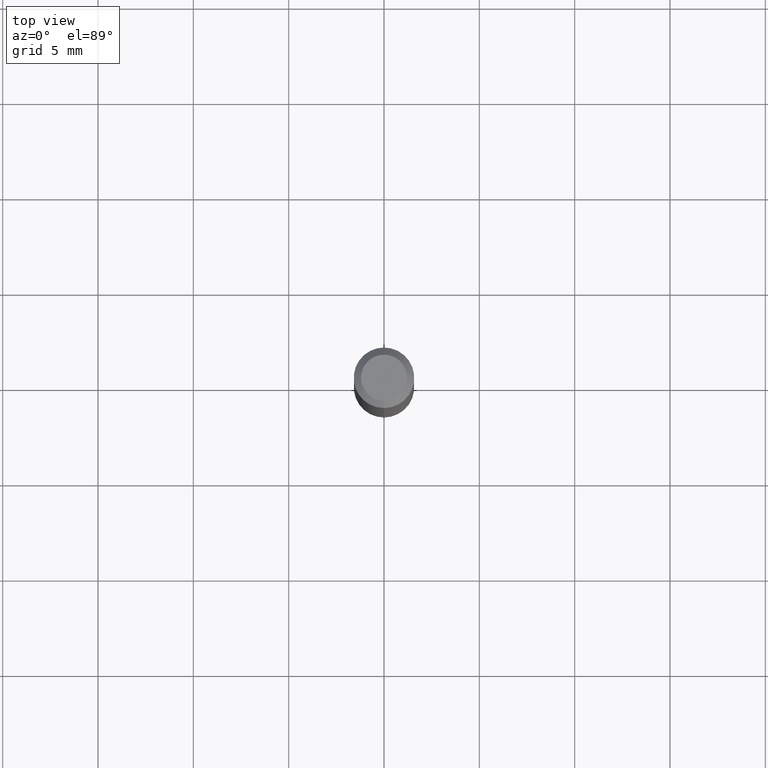
[diagram: clean part render]
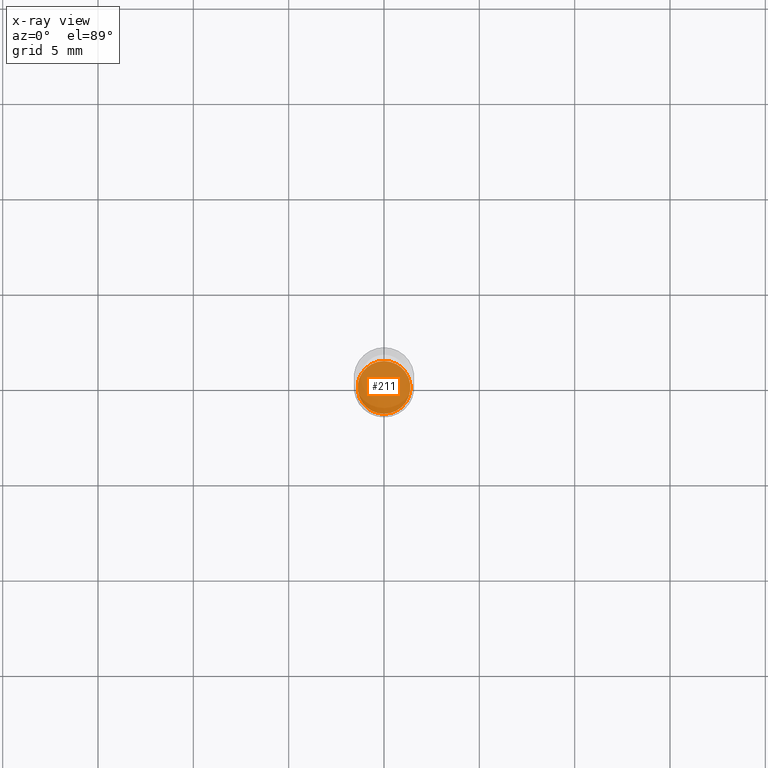
[diagram: x-ray — body ghosted, one internal face saturated and labeled with its STEP entity id]
A machine part, top view, then the same camera in x-ray: the body is ghosted and one INTERNAL B-rep face — a face not visible from any outside direction — is saturated and labeled: STEP entity #211.
In plain terms, the highlighted planar face has unit normal (-0, 0, 1).
Its self-contained STEP definition (entity closure, byte-faithful):
#26 = DIRECTION ( 'NONE',  ( -2.445161355493817803E-29, 3.491921625732120757E-15, 1.000000000000000000 ) ) ;
#93 = ORIENTED_EDGE ( 'NONE', *, *, #493, .F. ) ;
#103 = AXIS2_PLACEMENT_3D ( 'NONE', #384, #26, #176 ) ;
#106 = EDGE_CURVE ( 'NONE', #432, #225, #398, .T. ) ;
#116 = CARTESIAN_POINT ( 'NONE',  ( -3.805714659338728882E-16, -0.05450000000000408684, -1.169999999999999929 ) ) ;
#123 = PLANE ( 'NONE',  #389 ) ;
#133 = DIRECTION ( 'NONE',  ( -6.982962677686265922E-15, -1.000000000000000000, 2.506282562994736981E-15 ) ) ;
#137 = CARTESIAN_POINT ( 'NONE',  ( 3.890221478286835470E-16, 0.05449999999999591282, -1.170000000000000151 ) ) ;
#176 = DIRECTION ( 'NONE',  ( -6.982962677686265922E-15, -1.000000000000000000, 2.506282562994736981E-15 ) ) ;
#208 = DIRECTION ( 'NONE',  ( -2.445161355493817803E-29, 3.491921625732120757E-15, 1.000000000000000000 ) ) ;
#211 = ADVANCED_FACE ( 'NONE', ( #479 ), #123, .F. ) ;
#225 = VERTEX_POINT ( 'NONE', #116 ) ;
#256 = CIRCLE ( 'NONE', #103, 0.05449999999999999983 ) ;
#384 = CARTESIAN_POINT ( 'NONE',  ( 2.860838785927766903E-29, -4.085548302106581069E-15, -1.170000000000000151 ) ) ;
#389 = AXIS2_PLACEMENT_3D ( 'NONE', #483, #412, #403 ) ;
#397 = EDGE_LOOP ( 'NONE', ( #93, #477 ) ) ;
#398 = CIRCLE ( 'NONE', #459, 0.05449999999999999983 ) ;
#403 = DIRECTION ( 'NONE',  ( -6.982962677686265922E-15, -1.000000000000000000, 3.491921625732120363E-15 ) ) ;
#412 = DIRECTION ( 'NONE',  ( -2.445161355493817803E-29, 3.491921625732120363E-15, 1.000000000000000000 ) ) ;
#432 = VERTEX_POINT ( 'NONE', #137 ) ;
#447 = CARTESIAN_POINT ( 'NONE',  ( 2.860838785927766903E-29, -4.085548302106581069E-15, -1.170000000000000151 ) ) ;
#459 = AXIS2_PLACEMENT_3D ( 'NONE', #447, #208, #133 ) ;
#477 = ORIENTED_EDGE ( 'NONE', *, *, #106, .F. ) ;
#479 = FACE_OUTER_BOUND ( 'NONE', #397, .T. ) ;
#483 = CARTESIAN_POINT ( 'NONE',  ( 2.860838785927766903E-29, -4.085548302106581069E-15, -1.170000000000000151 ) ) ;
#493 = EDGE_CURVE ( 'NONE', #225, #432, #256, .T. ) ;